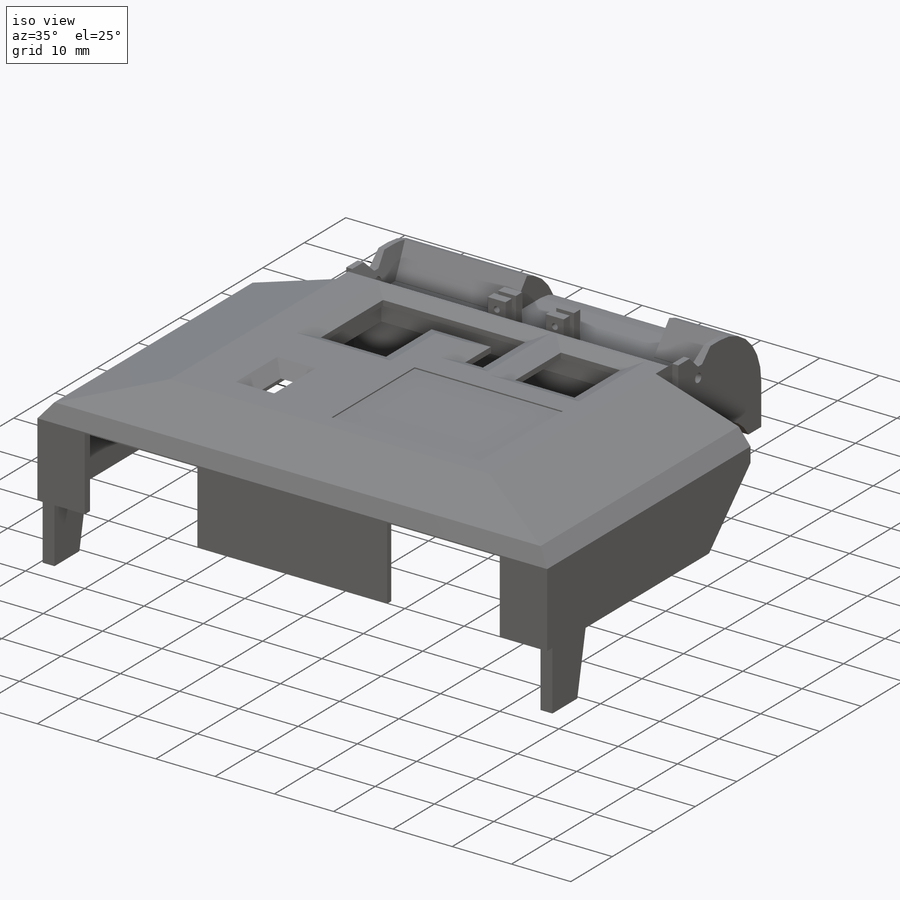
[diagram: iso view]
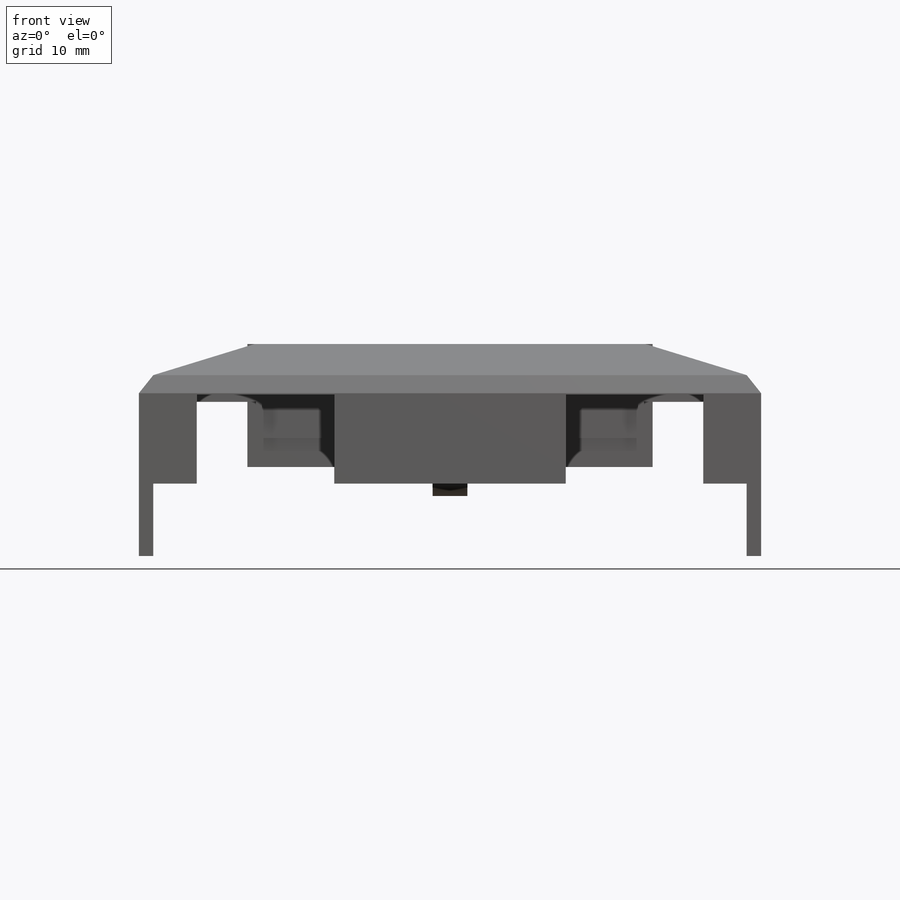
[diagram: front view]
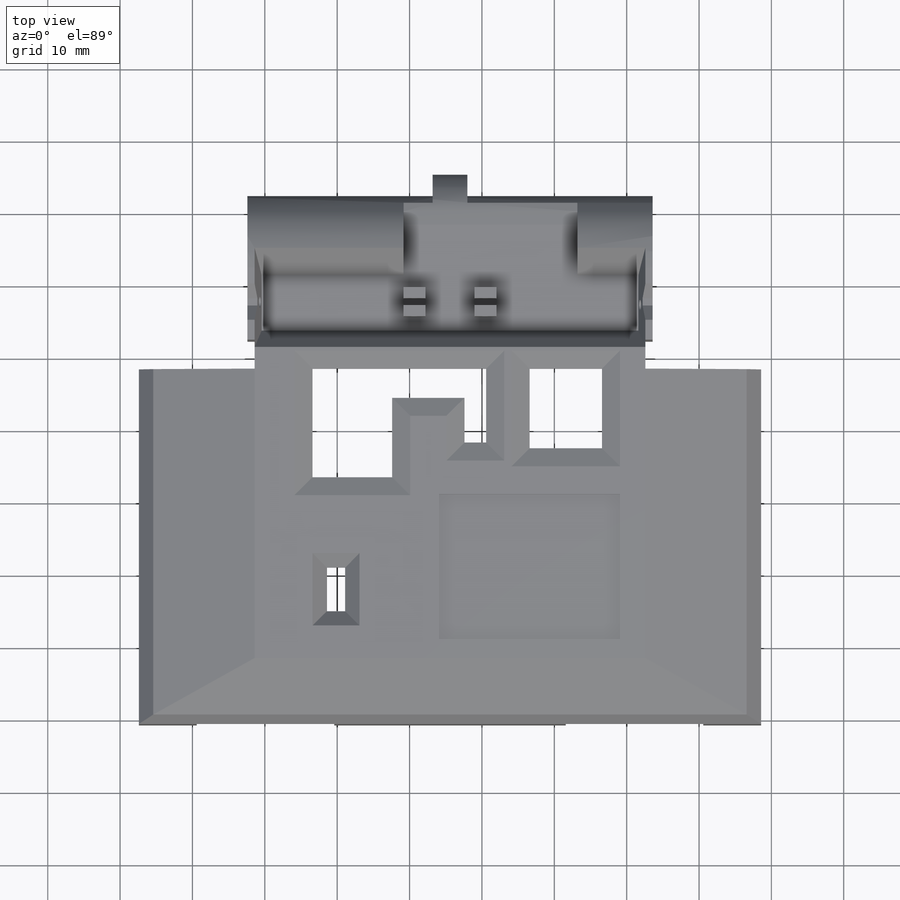
[diagram: top view]
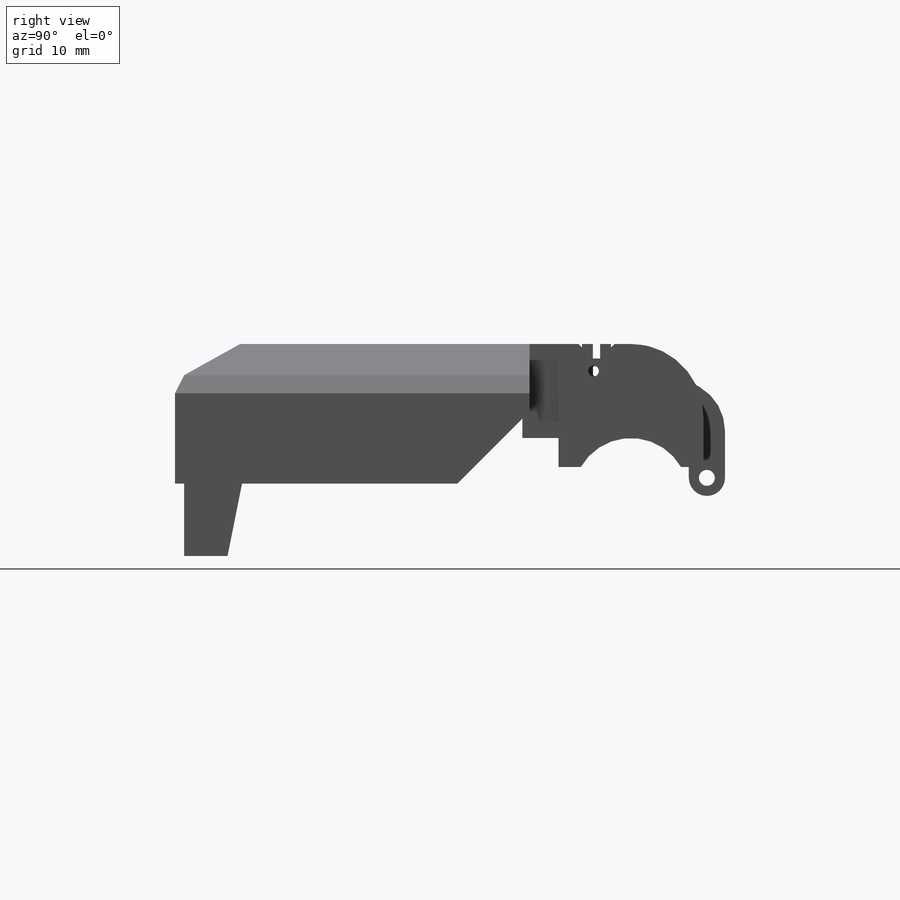
[diagram: right view]
SOLIDWORKS PART (.sldprt)
format: sldprt  version: not decoded by parser v0  size: 1,628,160 bytes
history: native  units: mm
features: sketch x59, cut_extrude x36, extrude x23, chamfer x9, fillet x4, plane x3, material x1, shell x1 (+10 scaffold rows collapsed)
feature tree (146):
  scaffold x10  (default folders/planes/origin — collapsed)
  material  "Material <not specified>"
  plane  "Ön Düzlem"
  plane  "Üst Düzlem"
  plane  "Sağ Düzlem"
  sketch  "Sketch1"  dims[D1=54.0mm D2=8.0mm D3=8.0mm D4=14.0mm D5=14.0mm D6=45.0mm D7=45.0mm]
  extrude  "Boss-Extrude1"  Depth=9mm
  sketch  "Sketch2"  dims[D1=7.2mm D2=7.2mm D3=10.2mm D4=13.2mm D5=11.6mm D6=35.0mm]
  cut_extrude  "Cut-Extrude1"  Depth=1.5mm
  sketch  "Sketch3"  dims[D1=10.2mm D2=13.2mm D3=11.6mm D4=7.2mm D5=7.2mm]
  cut_extrude  "Cut-Extrude2"  Depth=1.5mm
  sketch  "Sketch4"
  cut_extrude  "Cut-Extrude3"  Depth=1.5mm
  sketch  "Sketch5"  dims[D1=6.0mm]
  cut_extrude  "Cut-Extrude4"  Depth=12mm
  sketch  "Sketch6"  dims[D1=6.0mm]
  cut_extrude  "Cut-Extrude5"  Depth=12mm
  shell  "Shell1"  Thickness=1mm
  sketch  "Sketch7"
  extrude  "Boss-Extrude2"  Depth=4mm
  sketch  "Sketch8"  dims[D1=11.0mm D2=3.0mm D3=10.0mm D4=15.0mm D5=10.0mm D6=11.0mm D7=6.0mm D8=0.0mm D9=2.5mm D10=6.0mm D11=2.0mm D12=12.5mm D13=4.0mm D14=8.0mm]
  cut_extrude  "Cut-Extrude6"  Depth=199mm
  sketch  "Sketch10"  dims[D1=2.0mm D2=6.5mm]
  cut_extrude  "Cut-Extrude10"  Depth=199mm
  sketch  "Sketch11"  dims[D1=13.0mm D2=13.0mm]
  cut_extrude  "Cut-Extrude11"  Depth=12mm
  sketch  "Sketch14"  dims[D1=42.0mm D2=43.0mm D3=1.0mm D4=1.0mm]
  cut_extrude  "Cut-Extrude15"  Depth=3mm
  chamfer  "Chamfer2"  Distance=2.5mm Angle=23deg
  sketch  "Sketch15"  dims[D1=1.5mm D2=1.5mm]
  cut_extrude  "Cut-Extrude16"  Depth=200mm
  sketch  "Sketch17"  dims[D1=20.0mm D2=2.0mm D3=0.0mm]
  extrude  "Boss-Extrude3"  [1 undecoded]
  sketch  "Sketch18"
  extrude  "Boss-Extrude4"  Depth=2mm
  sketch  "Sketch19"  dims[D1=~8.004061mm]
  cut_extrude  "Cut-Extrude17"  Depth=100mm
  sketch  "Sketch20"
  extrude  "Boss-Extrude5"  Depth=1mm
  sketch  "Sketch21"
  extrude  "Boss-Extrude6"  Depth=1mm
  sketch  "Sketch22"  dims[D1=4.8mm D2=25.6mm D3=26.6mm]
  extrude  "Boss-Extrude7"  Depth=5mm
  sketch  "Sketch23"  dims[D1=4.8mm]
  extrude  "Boss-Extrude8"  Depth=3mm
  sketch  "Sketch24"  dims[D1=2.5mm D2=2.5mm]
  cut_extrude  "Cut-Extrude18"  Depth=5mm
  fillet  "Fillet1"  Radius=10mm
  fillet  "Fillet2"  Radius=10mm
  sketch  "Sketch25"  dims[D1=1.0mm D2=2.0mm D3=2.0mm D4=3.0mm]
  cut_extrude  "Cut-Extrude19"  Depth=5mm
  sketch  "Sketch26"  dims[D1=3.0mm D2=1.5mm D3=3.0mm D4=1.5mm D5=1.0mm D6=0.0mm D7=1.75mm D8=1.75mm D9=1.0mm D10=1.5mm D11=1.75mm D12=3.0mm D13=0.0mm D14=3.0mm D15=1.5mm D16=1.75mm]
  extrude  "Boss-Extrude9"  Depth=5mm
  chamfer  "Chamfer3"  Distance=4mm Angle=51deg
  chamfer  "Chamfer4"  Distance=2.5mm Angle=65deg
  chamfer  "Chamfer5"  Distance=1mm Angle=79deg
  chamfer  "Chamfer6"  Distance=1mm Angle=79deg
  sketch  "Sketch27"  dims[c1.D1=1.0mm c1.D3=~0.409073mm c2.D1=1.5mm c2.D2=1.5mm c2.D3=1.5mm]
  cut_extrude  "Cut-Extrude20"  Depth=5mm
  sketch  "Sketch28"
  extrude  "Boss-Extrude10"  Depth=5mm
  sketch  "Sketch29"  dims[D1=3.5mm D2=2.5mm]
  cut_extrude  "Cut-Extrude21"  Depth=5mm
  sketch  "Sketch30"
  cut_extrude  "Cut-Extrude22"  Depth=1mm
  fillet  "Fillet3"  Radius=2.5mm
  sketch  "Sketch31"
  cut_extrude  "Cut-Extrude23"  Depth=0.2mm
  sketch  "Sketch33"  dims[D1=0.0mm D2=0.0mm D3=2.0mm]
  cut_extrude  "Cut-Extrude25"  Depth=100mm
  chamfer  "Chamfer7"  Distance=2mm Angle=45deg
  sketch  "Sketch35"  dims[D1=0.5mm D2=1.75mm]
  cut_extrude  "Cut-Extrude27"  Depth=5mm
  sketch  "Sketch36"  dims[D1=1.75mm D2=~0.078239mm]
  cut_extrude  "Cut-Extrude28"  Depth=5mm
  sketch  "Sketch37"  dims[D1=8.0mm D2=15.0mm]
  cut_extrude  "Cut-Extrude29"  [1 undecoded]
  chamfer  "Chamfer8"  Distance=2mm Angle=45deg
  sketch  "Sketch39"  dims[D1=0.0mm D2=25.0mm D3=20.0mm]
  cut_extrude  "Cut-Extrude30"  Depth=0.2mm
  sketch  "Sketch40"
  cut_extrude  "Cut-Extrude31"  Depth=1mm
  sketch  "Sketch41"  dims[D1=3.0mm D2=1.0mm]
  extrude  "Boss-Extrude12"  [1 undecoded]
  sketch  "Sketch42"  dims[D1=4.0mm]
  cut_extrude  "Cut-Extrude32"  [1 undecoded]
  sketch  "Sketch43"  dims[D1=1.0mm D2=3.0mm D3=0.0mm]
  extrude  "Boss-Extrude13"  [1 undecoded]
  sketch  "Sketch44"
  extrude  "Boss-Extrude14"  [1 undecoded]
  sketch  "Sketch45"
  cut_extrude  "Cut-Extrude33"  Depth=2mm
  sketch  "Sketch46"
  cut_extrude  "Cut-Extrude34"  Depth=200mm
  sketch  "Sketch48"
  cut_extrude  "Cut-Extrude35"  Depth=1mm
  sketch  "Sketch49"
  cut_extrude  "Cut-Extrude36"  Depth=0.2mm
  sketch  "Sketch50"
  cut_extrude  "Cut-Extrude37"  Depth=0.2mm
  chamfer  "Chamfer11"  Distance=1mm Angle=82deg
  sketch  "Sketch51"  dims[D1=24.0mm D2=12.0mm D3=0.0mm D4=1.0mm]
  cut_extrude  "Cut-Extrude38"  Depth=10mm
  sketch  "Sketch52"
  cut_extrude  "Cut-Extrude39"  Depth=10mm
  fillet  "Fillet4"  Radius=7mm
  sketch  "Sketch53"  dims[D2=16.0mm D1=12.0mm]
  extrude  "Boss-Extrude15"  [1 undecoded]
  sketch  "Sketch54"  dims[D1=0.0mm D2=15.0mm]
  extrude  "Boss-Extrude16"  Depth=2mm
  sketch  "Sketch55"  dims[D1=0.0mm D2=15.0mm]
  extrude  "Boss-Extrude17"  Depth=2mm
  sketch  "Sketch56"  dims[D1=0.0mm D2=0.0mm]
  extrude  "Boss-Extrude18"  [1 undecoded]
  sketch  "Sketch57"  dims[D1=8.0mm D2=10.0mm]
  extrude  "Boss-Extrude20"  [1 undecoded]
  sketch  "Sketch58"
  extrude  "Boss-Extrude21"  [1 undecoded]
  chamfer  "Chamfer12"  Distance=10mm Angle=45deg
  sketch  "Sketch59"
  cut_extrude  "Cut-Extrude40"  [1 undecoded]
  sketch  "Sketch60"
  cut_extrude  "Cut-Extrude41"  [1 undecoded]
  sketch  "Sketch61"
  extrude  "Boss-Extrude22"  [1 undecoded]
  sketch  "Sketch62"
  extrude  "Boss-Extrude23"  [1 undecoded]
  sketch  "Sketch64"  dims[D1=8.0mm D2=8.0mm]
  extrude  "Boss-Extrude26"  [1 undecoded]
  sketch  "Sketch65"
  extrude  "Boss-Extrude27"  [1 undecoded]
  sketch  "Sketch66"
  cut_extrude  "Cut-Extrude42"  Depth=10mm
  sketch  "Sketch67"
  cut_extrude  "Cut-Extrude43"  Depth=100mm
  sketch  "Sketch68"
  cut_extrude  "Cut-Extrude44"  Depth=100mm
decode coverage: 91 of 132 modeling features carry decoded parameters
note: ~ marks probable driven/reference dimensions
note: 16 parameter values undecoded
summary: no parameter record found for 16 features
note: suppression state not decoded; provenance and decode notes live in map.json
